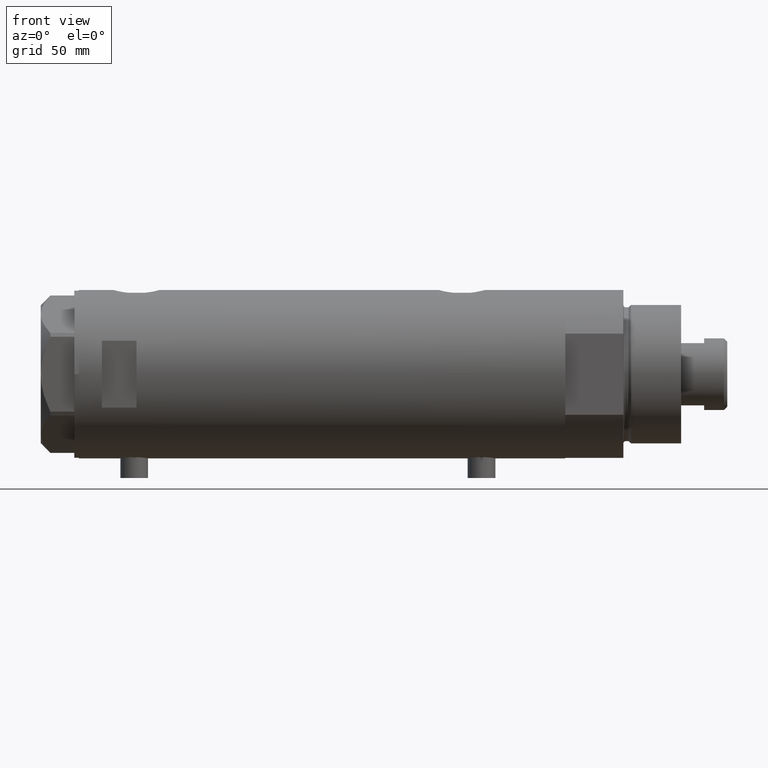
[diagram: clean part render]
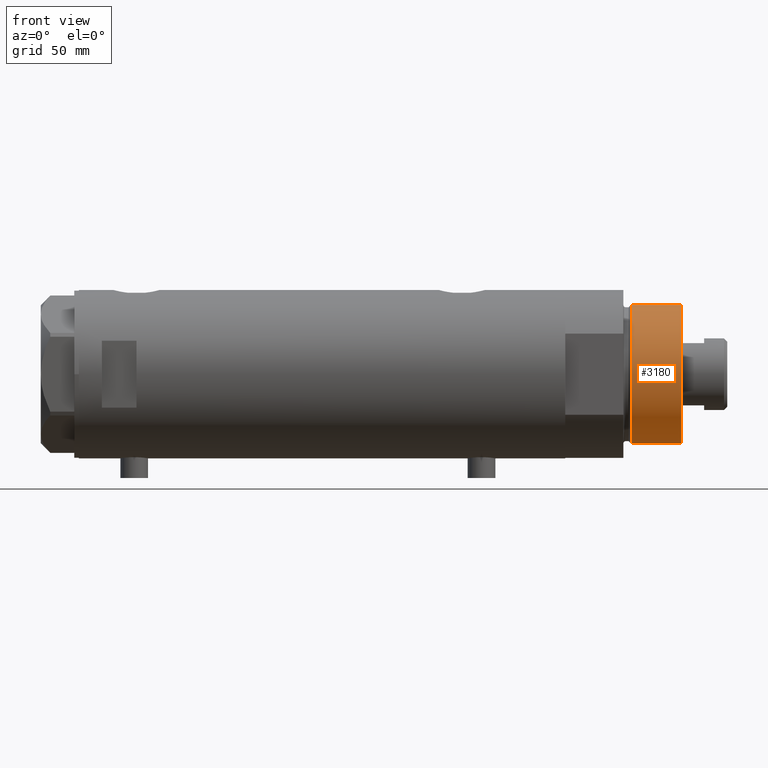
[diagram: same view with one face highlighted and labeled with its STEP entity id]
A machine part, front view. The second image highlights one B-rep face of the part: STEP entity #3180.
In plain terms, the highlighted cylindrical surface (partial cylindrical patch) has radius 30 mm, axis along (-1, -0, 0).
Its self-contained STEP definition (entity closure, byte-faithful):
#337 = VECTOR ( 'NONE', #4004, 1000.000000000000000 ) ;
#546 = LINE ( 'NONE', #1939, #337 ) ;
#627 = EDGE_CURVE ( 'NONE', #4153, #1824, #1470, .T. ) ;
#667 = ORIENTED_EDGE ( 'NONE', *, *, #4148, .T. ) ;
#697 = CIRCLE ( 'NONE', #1126, 30.00000000000000000 ) ;
#760 = CARTESIAN_POINT ( 'NONE',  ( -30.00000000000000000, 0.000000000000000000, 28.57384048104054486 ) ) ;
#815 = DIRECTION ( 'NONE',  ( -0.000000000000000000, -0.000000000000000000, -1.000000000000000000 ) ) ;
#932 = VECTOR ( 'NONE', #815, 1000.000000000000000 ) ;
#1044 = CYLINDRICAL_SURFACE ( 'NONE', #2056, 30.00000000000000000 ) ;
#1126 = AXIS2_PLACEMENT_3D ( 'NONE', #3137, #1137, #2807 ) ;
#1137 = DIRECTION ( 'NONE',  ( -0.000000000000000000, -0.000000000000000000, 1.000000000000000000 ) ) ;
#1184 = CARTESIAN_POINT ( 'NONE',  ( 30.00000000000000000, 3.673940397442058389E-15, 50.19999999999999574 ) ) ;
#1470 = LINE ( 'NONE', #1184, #932 ) ;
#1604 = EDGE_CURVE ( 'NONE', #2965, #4153, #3953, .T. ) ;
#1824 = VERTEX_POINT ( 'NONE', #2861 ) ;
#1939 = CARTESIAN_POINT ( 'NONE',  ( -30.00000000000000000, 0.000000000000000000, 50.19999999999999574 ) ) ;
#1971 = ORIENTED_EDGE ( 'NONE', *, *, #1604, .F. ) ;
#2056 = AXIS2_PLACEMENT_3D ( 'NONE', #3145, #2408, #2467 ) ;
#2073 = EDGE_CURVE ( 'NONE', #2965, #2997, #546, .T. ) ;
#2408 = DIRECTION ( 'NONE',  ( -0.000000000000000000, -0.000000000000000000, -1.000000000000000000 ) ) ;
#2417 = ORIENTED_EDGE ( 'NONE', *, *, #2073, .T. ) ;
#2460 = CARTESIAN_POINT ( 'NONE',  ( 30.00000000000000000, 3.673940397442058389E-15, 50.19999999999999574 ) ) ;
#2467 = DIRECTION ( 'NONE',  ( -1.000000000000000000, 0.000000000000000000, 0.000000000000000000 ) ) ;
#2618 = CARTESIAN_POINT ( 'NONE',  ( 0.000000000000000000, 0.000000000000000000, 50.19999999999999574 ) ) ;
#2626 = ORIENTED_EDGE ( 'NONE', *, *, #627, .F. ) ;
#2759 = FACE_OUTER_BOUND ( 'NONE', #3630, .T. ) ;
#2807 = DIRECTION ( 'NONE',  ( 1.000000000000000000, 0.000000000000000000, 0.000000000000000000 ) ) ;
#2861 = CARTESIAN_POINT ( 'NONE',  ( 30.00000000000000000, 3.673940397442058389E-15, 28.57384048104054486 ) ) ;
#2965 = VERTEX_POINT ( 'NONE', #3496 ) ;
#2997 = VERTEX_POINT ( 'NONE', #760 ) ;
#3137 = CARTESIAN_POINT ( 'NONE',  ( 0.000000000000000000, 0.000000000000000000, 28.57384048104054486 ) ) ;
#3145 = CARTESIAN_POINT ( 'NONE',  ( 0.000000000000000000, 0.000000000000000000, 50.19999999999999574 ) ) ;
#3180 = ADVANCED_FACE ( 'NONE', ( #2759 ), #1044, .T. ) ;
#3496 = CARTESIAN_POINT ( 'NONE',  ( -30.00000000000000000, 0.000000000000000000, 50.19999999999999574 ) ) ;
#3630 = EDGE_LOOP ( 'NONE', ( #2626, #1971, #2417, #667 ) ) ;
#3650 = DIRECTION ( 'NONE',  ( 1.000000000000000000, 0.000000000000000000, 0.000000000000000000 ) ) ;
#3742 = AXIS2_PLACEMENT_3D ( 'NONE', #2618, #3982, #3650 ) ;
#3953 = CIRCLE ( 'NONE', #3742, 30.00000000000000000 ) ;
#3982 = DIRECTION ( 'NONE',  ( 0.000000000000000000, 0.000000000000000000, 1.000000000000000000 ) ) ;
#4004 = DIRECTION ( 'NONE',  ( -0.000000000000000000, -0.000000000000000000, -1.000000000000000000 ) ) ;
#4148 = EDGE_CURVE ( 'NONE', #2997, #1824, #697, .T. ) ;
#4153 = VERTEX_POINT ( 'NONE', #2460 ) ;